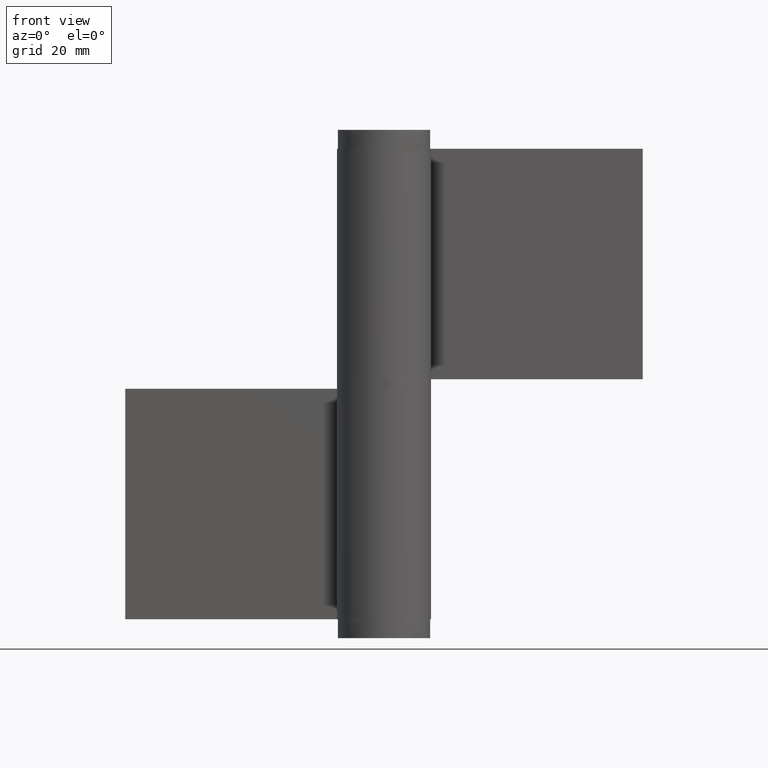
[diagram: clean part render]
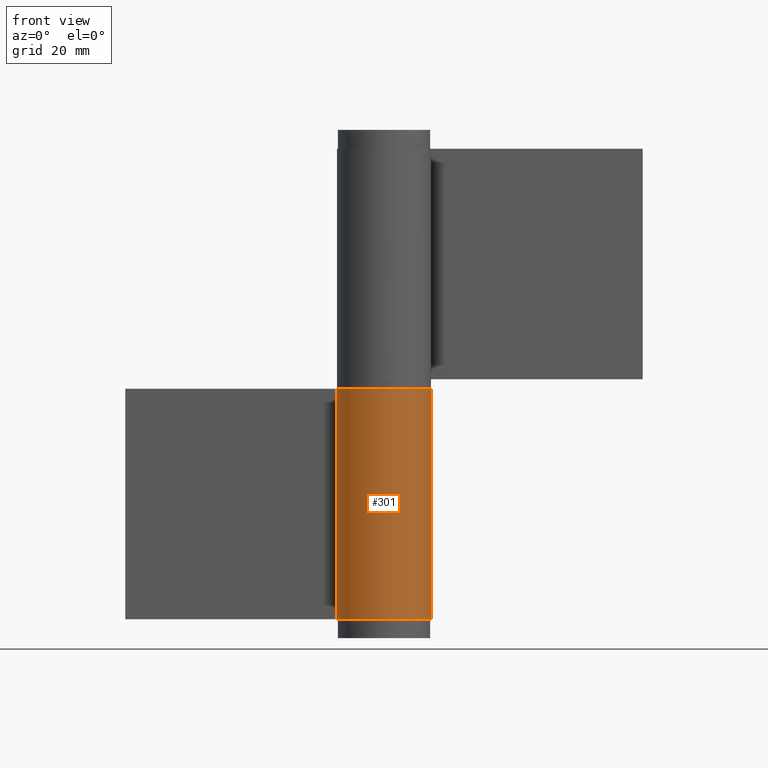
[diagram: same view with one face highlighted and labeled with its STEP entity id]
A machine part, front view. The second image highlights one B-rep face of the part: STEP entity #301.
In plain terms, the highlighted face is a freeform B-spline surface patch.
Its self-contained STEP definition (entity closure, byte-faithful):
#58=CARTESIAN_POINT('',(0.0,10.0,0.0));
#59=VERTEX_POINT('',#58);
#65=CARTESIAN_POINT('',(-8.384360440725340,5.450000000000000,0.0));
#66=VERTEX_POINT('',#65);
#67=CARTESIAN_POINT('',(0.0,10.0,0.0));
#68=CARTESIAN_POINT('',(7.778645974197688,10.0,0.0));
#69=CARTESIAN_POINT('',(9.692573939780772,2.460489874371089,0.0));
#70=CARTESIAN_POINT('',(11.606501905363858,-5.079020251257823,0.0));
#71=CARTESIAN_POINT('',(4.769696007084734,-8.789197915623470,0.0));
#72=CARTESIAN_POINT('',(-2.067109891194394,-12.499375579989119,0.0));
#73=CARTESIAN_POINT('',(-7.345416193928739,-6.785636369418084,0.0));
#74=CARTESIAN_POINT('',(-12.623722496663074,-1.071897158847060,0.0));
#75=CARTESIAN_POINT('',(-8.384360440725345,5.449999999999990,0.0));
#83=(BOUNDED_CURVE()B_SPLINE_CURVE(2,(#67,#68,#69,#70,#71,#72,#73,#74,#75),.UNSPECIFIED.,.F.,.U.)B_SPLINE_CURVE_WITH_KNOTS((3,2,2,2,3),(0.0,0.250000000000000,0.500000000000000,0.750000000000000,1.0),.UNSPECIFIED.)CURVE()GEOMETRIC_REPRESENTATION_ITEM()RATIONAL_B_SPLINE_CURVE((1.0,0.789319006307687,1.0,0.789319006307687,1.0,0.789319006307687,1.0,0.789319006307687,1.0))REPRESENTATION_ITEM(''));
#84=EDGE_CURVE('',#59,#66,#83,.T.);
#164=CARTESIAN_POINT('',(-8.384360440725340,5.450000000000000,49.0));
#165=VERTEX_POINT('',#164);
#171=CARTESIAN_POINT('',(0.0,10.0,49.0));
#172=VERTEX_POINT('',#171);
#173=CARTESIAN_POINT('',(0.0,10.0,49.0));
#174=CARTESIAN_POINT('',(7.778645974197688,10.0,49.0));
#175=CARTESIAN_POINT('',(9.692573939780772,2.460489874371089,49.0));
#176=CARTESIAN_POINT('',(11.606501905363858,-5.079020251257823,49.0));
#177=CARTESIAN_POINT('',(4.769696007084734,-8.789197915623470,49.0));
#178=CARTESIAN_POINT('',(-2.067109891194394,-12.499375579989119,49.0));
#179=CARTESIAN_POINT('',(-7.345416193928739,-6.785636369418084,49.0));
#180=CARTESIAN_POINT('',(-12.623722496663074,-1.071897158847060,49.0));
#181=CARTESIAN_POINT('',(-8.384360440725345,5.449999999999990,49.0));
#189=(BOUNDED_CURVE()B_SPLINE_CURVE(2,(#173,#174,#175,#176,#177,#178,#179,#180,#181),.UNSPECIFIED.,.F.,.U.)B_SPLINE_CURVE_WITH_KNOTS((3,2,2,2,3),(0.0,0.250000000000000,0.500000000000000,0.750000000000000,1.0),.UNSPECIFIED.)CURVE()GEOMETRIC_REPRESENTATION_ITEM()RATIONAL_B_SPLINE_CURVE((1.0,0.789319006307687,1.0,0.789319006307687,1.0,0.789319006307687,1.0,0.789319006307687,1.0))REPRESENTATION_ITEM(''));
#190=EDGE_CURVE('',#172,#165,#189,.T.);
#259=CARTESIAN_POINT('',(-8.384360440725340,5.450000000000000,49.0));
#260=CARTESIAN_POINT('',(-8.384360440725340,5.450000000000000,0.0));
#261=QUASI_UNIFORM_CURVE('',1,(#259,#260),.UNSPECIFIED.,.F.,.U.);
#262=EDGE_CURVE('',#165,#66,#261,.T.);
#269=CARTESIAN_POINT('',(-8.141155183563191,5.807029557109394,50.225000000000009));
#270=CARTESIAN_POINT('',(-8.141155183563191,5.807029557109394,-1.255625000000002));
#271=CARTESIAN_POINT('',(-15.485341408594035,-4.489139795389203,50.225000000000016));
#272=CARTESIAN_POINT('',(-15.485341408594035,-4.489139795389203,-1.255625000000002));
#273=CARTESIAN_POINT('',(-3.773020732343967,-9.260902469700376,50.225000000000009));
#274=CARTESIAN_POINT('',(-3.773020732343967,-9.260902469700376,-1.255625000000002));
#275=CARTESIAN_POINT('',(7.939299943906103,-14.032665144011547,50.225000000000016));
#276=CARTESIAN_POINT('',(7.939299943906103,-14.032665144011547,-1.255625000000002));
#277=CARTESIAN_POINT('',(9.881392106600755,-1.535607383287859,50.225000000000009));
#278=CARTESIAN_POINT('',(9.881392106600755,-1.535607383287859,-1.255625000000002));
#279=CARTESIAN_POINT('',(11.823484269295408,10.961450377435828,50.225000000000016));
#280=CARTESIAN_POINT('',(11.823484269295408,10.961450377435828,-1.255625000000002));
#281=CARTESIAN_POINT('',(-0.784590957278452,9.969173337331274,50.225000000000009));
#282=CARTESIAN_POINT('',(-0.784590957278452,9.969173337331274,-1.255625000000002));
#290=(BOUNDED_SURFACE()B_SPLINE_SURFACE(1,2,((#269,#271,#273,#275,#277,#279,#281),(#270,#272,#274,#276,#278,#280,#282)),.UNSPECIFIED.,.F.,.F.,.U.)B_SPLINE_SURFACE_WITH_KNOTS((2,2),(3,2,2,3),(0.0,51.480625000000018),(0.0,19.365472961108001,38.730945922215987,58.096418883323992),.UNSPECIFIED.)GEOMETRIC_REPRESENTATION_ITEM()RATIONAL_B_SPLINE_SURFACE(((1.0,0.620235491268260,1.0,0.620235491268260,1.0,0.620235491268260,1.0),(1.0,0.620235491268260,1.0,0.620235491268260,1.0,0.620235491268260,1.0)))REPRESENTATION_ITEM('')SURFACE());
#291=ORIENTED_EDGE('',*,*,#84,.F.);
#292=CARTESIAN_POINT('',(0.0,10.0,49.0));
#293=CARTESIAN_POINT('',(0.0,10.0,0.0));
#294=QUASI_UNIFORM_CURVE('',1,(#292,#293),.UNSPECIFIED.,.F.,.U.);
#295=EDGE_CURVE('',#172,#59,#294,.T.);
#296=ORIENTED_EDGE('',*,*,#295,.F.);
#297=ORIENTED_EDGE('',*,*,#190,.T.);
#298=ORIENTED_EDGE('',*,*,#262,.T.);
#299=EDGE_LOOP('',(#291,#296,#297,#298));
#300=FACE_OUTER_BOUND('',#299,.T.);
#301=ADVANCED_FACE('',(#300),#290,.T.);